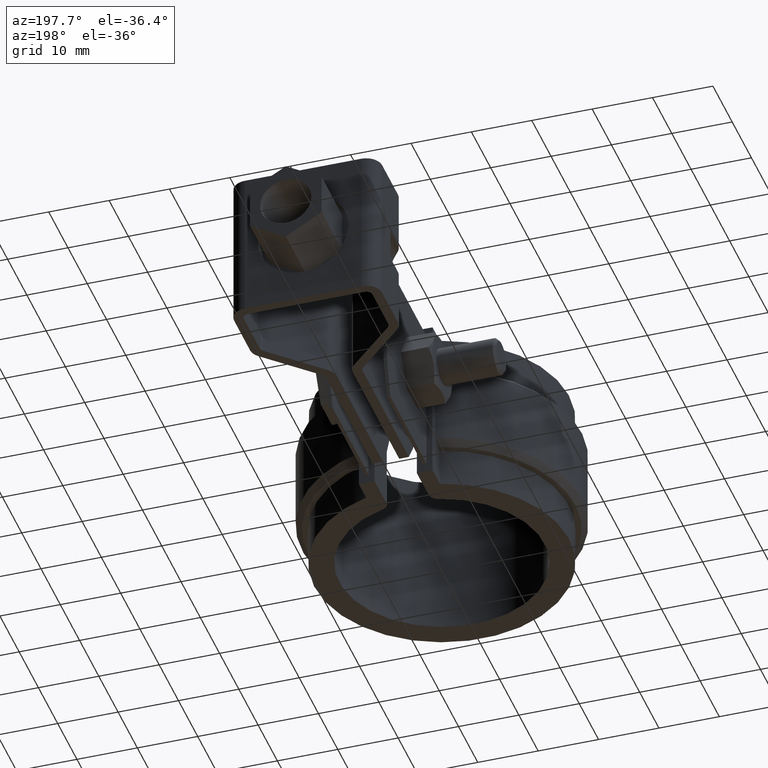
[diagram: clean part render]
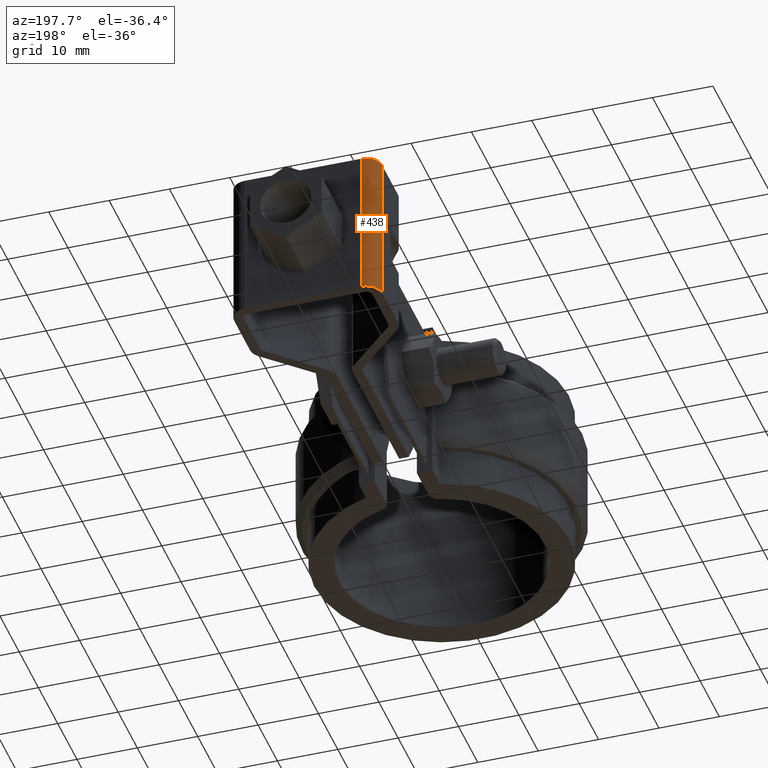
[diagram: same view with one face highlighted and labeled with its STEP entity id]
A machine part, auxiliary view. The second image highlights one B-rep face of the part: STEP entity #438.
In plain terms, the highlighted cylindrical surface (edge-blend (fillet) strip) has radius 2.6 mm, axis along (0, -0, 1).
Its self-contained STEP definition (entity closure, byte-faithful):
#438 = ADVANCED_FACE( '', ( #782 ), #783, .T. );
#782 = FACE_OUTER_BOUND( '', #1620, .T. );
#783 = CYLINDRICAL_SURFACE( '', #1621, 2.59999999999999 );
#1620 = EDGE_LOOP( '', ( #3597, #3598, #3599, #3600 ) );
#1621 = AXIS2_PLACEMENT_3D( '', #3601, #3602, #3603 );
#3597 = ORIENTED_EDGE( '', *, *, #4678, .F. );
#3598 = ORIENTED_EDGE( '', *, *, #4679, .F. );
#3599 = ORIENTED_EDGE( '', *, *, #4671, .T. );
#3600 = ORIENTED_EDGE( '', *, *, #4680, .T. );
#3601 = CARTESIAN_POINT( '', ( -9.64999908393835, 69.4043598575124, 2.30304202097908E-006 ) );
#3602 = DIRECTION( '', ( 4.22881699458974E-010, -1.66499459774983E-008, 1.00000000000000 ) );
#3603 = DIRECTION( '', ( 6.88262000006329E-009, 1.00000000000000, 1.66499459745878E-008 ) );
#4671 = EDGE_CURVE( '', #5514, #5512, #5515, .T. );
#4678 = EDGE_CURVE( '', #5527, #5528, #5529, .T. );
#4679 = EDGE_CURVE( '', #5514, #5527, #5530, .T. );
#4680 = EDGE_CURVE( '', #5512, #5528, #5531, .T. );
#5512 = VERTEX_POINT( '', #8175 );
#5514 = VERTEX_POINT( '', #8178 );
#5515 = CIRCLE( '', #8179, 2.59999999999999 );
#5527 = VERTEX_POINT( '', #8195 );
#5528 = VERTEX_POINT( '', #8196 );
#5529 = CIRCLE( '', #8197, 2.59999999999999 );
#5530 = LINE( '', #8198, #8199 );
#5531 = LINE( '', #8200, #8201 );
#8175 = CARTESIAN_POINT( '', ( -9.64999906604353, 72.0043598575124, 2.34633187878863E-006 ) );
#8178 = CARTESIAN_POINT( '', ( -12.2499990839383, 69.4043598754072, 2.30414151647373E-006 ) );
#8179 = AXIS2_PLACEMENT_3D( '', #9220, #9221, #9222 );
#8195 = CARTESIAN_POINT( '', ( -12.2499990945104, 69.4043602916559, -24.9999976958585 ) );
#8196 = CARTESIAN_POINT( '', ( -9.64999907661557, 72.0043602737611, -24.9999976536681 ) );
#8197 = AXIS2_PLACEMENT_3D( '', #9233, #9234, #9235 );
#8198 = CARTESIAN_POINT( '', ( -12.2499990839383, 69.4043598754072, 2.30414151647373E-006 ) );
#8199 = VECTOR( '', #9236, 1000.00000000000 );
#8200 = CARTESIAN_POINT( '', ( -9.64999906604353, 72.0043598575124, 2.34633187878863E-006 ) );
#8201 = VECTOR( '', #9237, 1000.00000000000 );
#9220 = CARTESIAN_POINT( '', ( -9.64999908393835, 69.4043598575124, 2.30304202097908E-006 ) );
#9221 = DIRECTION( '', ( -4.22881699458974E-010, 1.66499459774983E-008, -1.00000000000000 ) );
#9222 = DIRECTION( '', ( -1.00000000000000, 6.88261999302233E-009, 4.22881814054225E-010 ) );
#9233 = CARTESIAN_POINT( '', ( -9.64999909451039, 69.4043602737611, -24.9999976969580 ) );
#9234 = DIRECTION( '', ( -4.22881699458974E-010, 1.66499459774983E-008, -1.00000000000000 ) );
#9235 = DIRECTION( '', ( -1.00000000000000, 6.88261999302233E-009, 4.22881814054225E-010 ) );
#9236 = DIRECTION( '', ( -4.22881699458974E-010, 1.66499459774983E-008, -1.00000000000000 ) );
#9237 = DIRECTION( '', ( -4.22881699458974E-010, 1.66499459774983E-008, -1.00000000000000 ) );